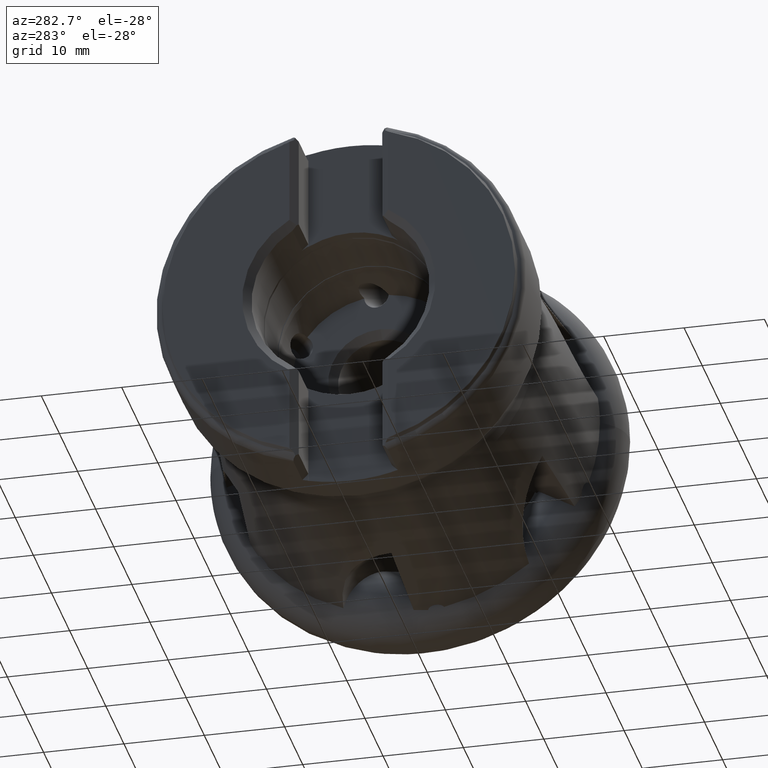
[diagram: clean part render]
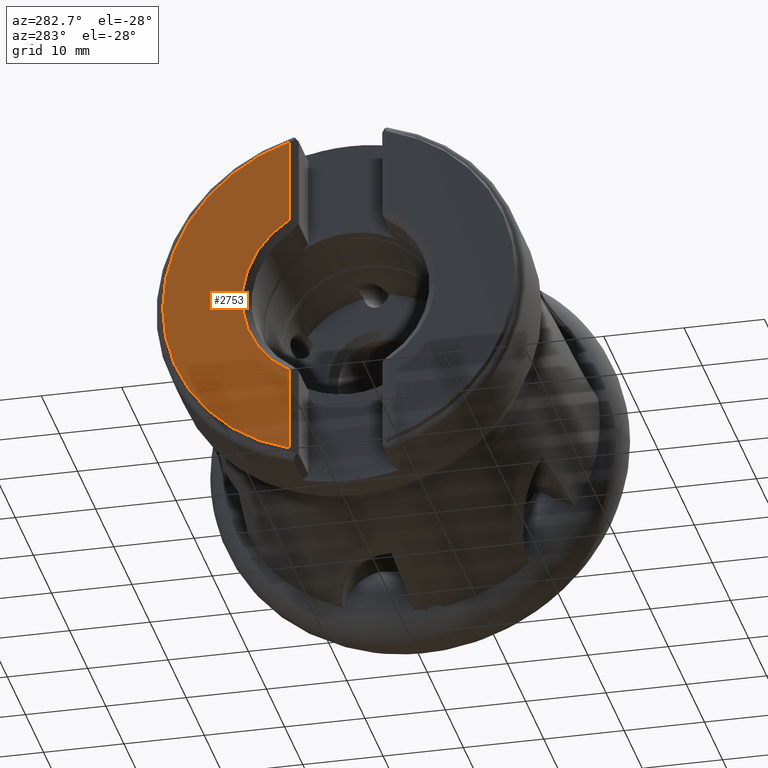
[diagram: same view with one face highlighted and labeled with its STEP entity id]
A machine part, auxiliary view. The second image highlights one B-rep face of the part: STEP entity #2753.
In plain terms, the highlighted planar face has unit normal (1, 0, -0).
Its self-contained STEP definition (entity closure, byte-faithful):
#521 = EDGE_LOOP ( 'NONE', ( #2881, #2836, #2854, #2862 ) ) ;
#907 = VERTEX_POINT ( 'NONE', #2657 ) ;
#1342 = CARTESIAN_POINT ( 'NONE',  ( -48.85000000000000100, 0.0000000000000000000, 0.0000000000000000000 ) ) ;
#1343 = DIRECTION ( 'NONE',  ( -1.000000000000000000, 0.0000000000000000000, 0.0000000000000000000 ) ) ;
#1344 = DIRECTION ( 'NONE',  ( 0.0000000000000000000, 0.0000000000000000000, -1.000000000000000000 ) ) ;
#1507 = CARTESIAN_POINT ( 'NONE',  ( -48.85000000000000100, 6.150000000000012800, -30.00000000000000000 ) ) ;
#1508 = DIRECTION ( 'NONE',  ( 0.0000000000000000000, 0.0000000000000000000, -1.000000000000000000 ) ) ;
#2657 = CARTESIAN_POINT ( 'NONE',  ( -48.85000000000000100, 6.150000000000012800, 21.04196264864113900 ) ) ;
#2753 = ADVANCED_FACE ( 'NONE', ( #5027 ), #2941, .F. ) ;
#2836 = ORIENTED_EDGE ( 'NONE', *, *, #3381, .F. ) ;
#2854 = ORIENTED_EDGE ( 'NONE', *, *, #3341, .T. ) ;
#2862 = ORIENTED_EDGE ( 'NONE', *, *, #3261, .F. ) ;
#2881 = ORIENTED_EDGE ( 'NONE', *, *, #4644, .F. ) ;
#2941 = PLANE ( 'NONE',  #7191 ) ;
#2942 = CARTESIAN_POINT ( 'NONE',  ( -48.85000000000000100, -9.017373412494777600E-015, 0.0000000000000000000 ) ) ;
#2947 = DIRECTION ( 'NONE',  ( 1.000000000000000000, 0.0000000000000000000, -0.0000000000000000000 ) ) ;
#2948 = DIRECTION ( 'NONE',  ( -0.0000000000000000000, 0.0000000000000000000, -1.000000000000000000 ) ) ;
#3067 = VERTEX_POINT ( 'NONE', #3928 ) ;
#3080 = VERTEX_POINT ( 'NONE', #3934 ) ;
#3083 = VERTEX_POINT ( 'NONE', #3941 ) ;
#3261 = EDGE_CURVE ( 'NONE', #3083, #3067, #4349, .T. ) ;
#3341 = EDGE_CURVE ( 'NONE', #907, #3067, #4421, .T. ) ;
#3381 = EDGE_CURVE ( 'NONE', #907, #3080, #4463, .T. ) ;
#3928 = CARTESIAN_POINT ( 'NONE',  ( -48.85000000000000100, 6.150000000000013700, -21.04196264864114200 ) ) ;
#3934 = CARTESIAN_POINT ( 'NONE',  ( -48.85000000000000100, 6.150000000000012800, 10.33335013439494100 ) ) ;
#3941 = CARTESIAN_POINT ( 'NONE',  ( -48.85000000000000100, 6.150000000000013700, -10.33335013439494100 ) ) ;
#4079 = CARTESIAN_POINT ( 'NONE',  ( -48.85000000000000100, 6.150000000000012800, -30.00000000000000000 ) ) ;
#4081 = DIRECTION ( 'NONE',  ( 0.0000000000000000000, 0.0000000000000000000, -1.000000000000000000 ) ) ;
#4344 = VECTOR ( 'NONE', #4081, 1000.000000000000000 ) ;
#4349 = LINE ( 'NONE', #4079, #4344 ) ;
#4421 = CIRCLE ( 'NONE', #6409, 21.92228756555321600 ) ;
#4463 = LINE ( 'NONE', #1507, #4466 ) ;
#4466 = VECTOR ( 'NONE', #1508, 1000.000000000000000 ) ;
#4521 = CIRCLE ( 'NONE', #6428, 12.02500000000000400 ) ;
#4644 = EDGE_CURVE ( 'NONE', #3080, #3083, #4521, .T. ) ;
#5027 = FACE_OUTER_BOUND ( 'NONE', #521, .T. ) ;
#6409 = AXIS2_PLACEMENT_3D ( 'NONE', #1342, #1343, #1344 ) ;
#6428 = AXIS2_PLACEMENT_3D ( 'NONE', #6705, #6706, #6707 ) ;
#6705 = CARTESIAN_POINT ( 'NONE',  ( -48.85000000000000100, 0.0000000000000000000, 0.0000000000000000000 ) ) ;
#6706 = DIRECTION ( 'NONE',  ( -1.000000000000000000, 0.0000000000000000000, 0.0000000000000000000 ) ) ;
#6707 = DIRECTION ( 'NONE',  ( 0.0000000000000000000, 0.0000000000000000000, -1.000000000000000000 ) ) ;
#7191 = AXIS2_PLACEMENT_3D ( 'NONE', #2942, #2947, #2948 ) ;